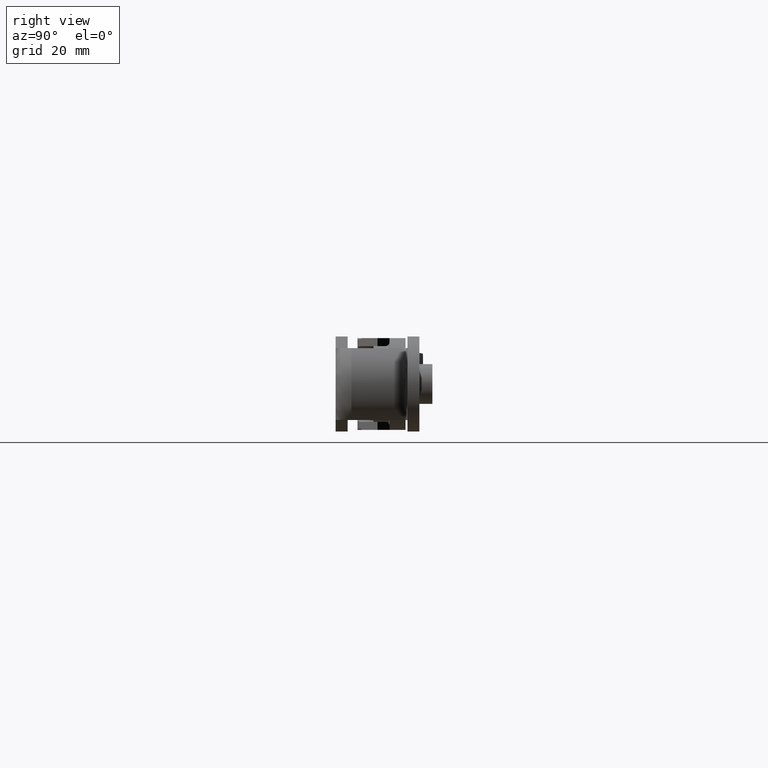
[diagram: clean part render]
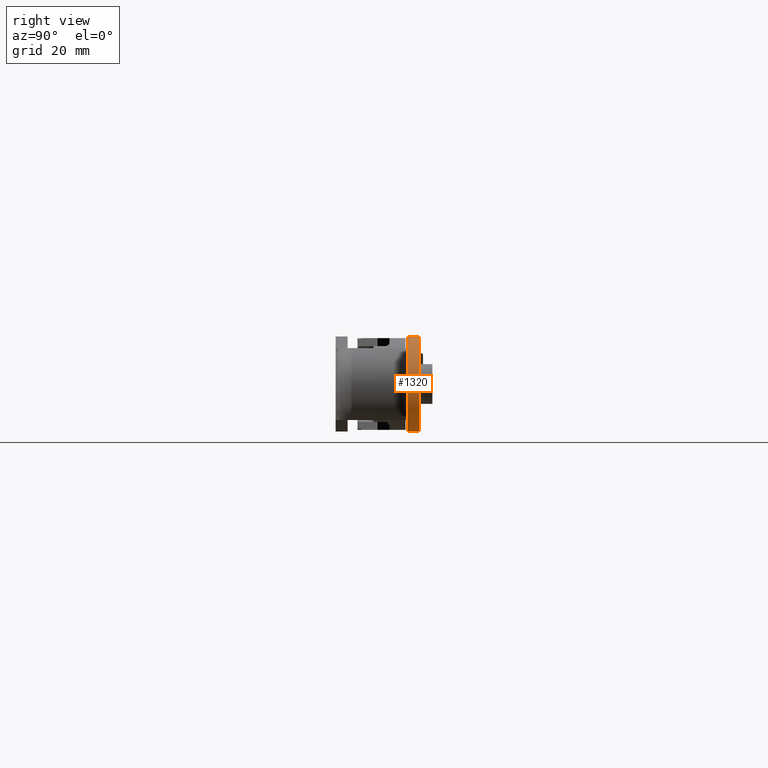
[diagram: same view with one face highlighted and labeled with its STEP entity id]
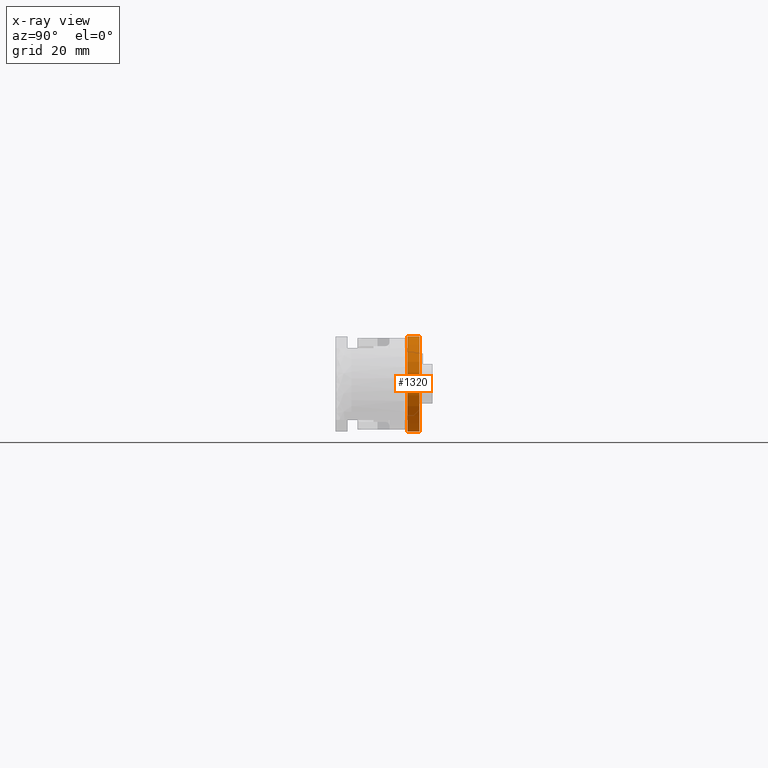
[diagram: x-ray of the same camera — body ghosted, the highlighted face saturated]
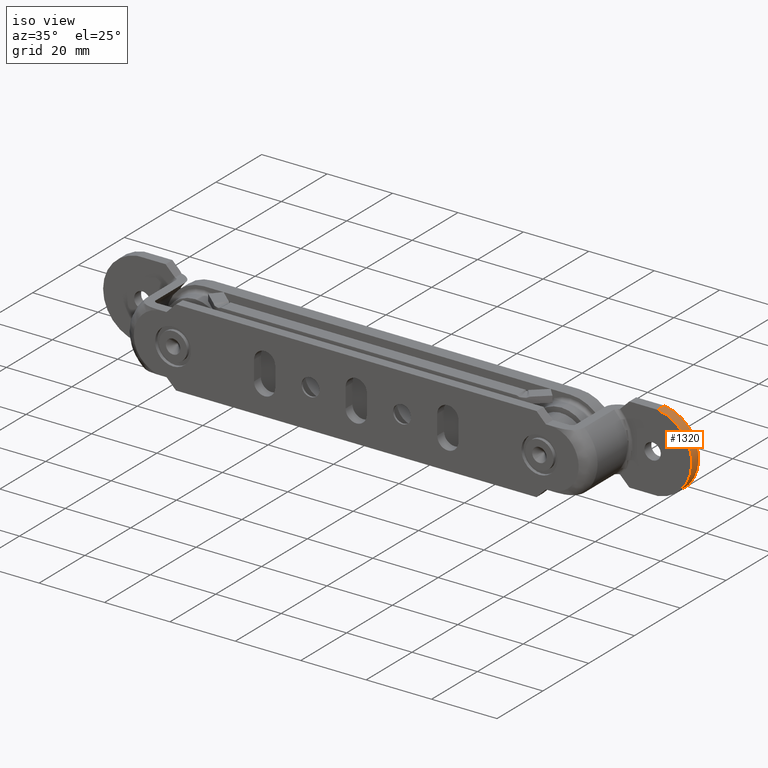
[diagram: same view with one face highlighted and labeled with its STEP entity id]
A machine part, right view. The second image highlights one B-rep face of the part: STEP entity #1320.
The next image is the same camera in x-ray: the body ghosted, the highlighted face saturated — about 0% of this face is hidden behind the body in this view.
A second angle (iso view) of the same face is appended — the face is thin or edge-on in the first view.
In plain terms, the highlighted cylindrical surface (partial cylindrical patch) has radius 12 mm, axis along (0, 1, 0).
Its self-contained STEP definition (entity closure, byte-faithful):
#160 = DIRECTION ( 'NONE',  ( 0.000000000000000000, 1.000000000000000000, 0.000000000000000000 ) ) ;
#170 = AXIS2_PLACEMENT_3D ( 'NONE', #1418, #5026, #5574 ) ;
#250 = CYLINDRICAL_SURFACE ( 'NONE', #4397, 12.00000000000000000 ) ;
#892 = DIRECTION ( 'NONE',  ( 0.000000000000000000, 1.000000000000000000, -0.000000000000000000 ) ) ;
#1320 = ADVANCED_FACE ( 'NONE', ( #8437 ), #250, .T. ) ;
#1418 = CARTESIAN_POINT ( 'NONE',  ( 78.00000000000000000, 21.00000000000000000, -1.842452832560978627E-15 ) ) ;
#1724 = EDGE_CURVE ( 'NONE', #2841, #4999, #6374, .T. ) ;
#1892 = LINE ( 'NONE', #1937, #7156 ) ;
#1937 = CARTESIAN_POINT ( 'NONE',  ( 79.54596248337401221, 18.00000000000000355, 11.90000000000000036 ) ) ;
#1944 = DIRECTION ( 'NONE',  ( 0.000000000000000000, 1.000000000000000000, 0.000000000000000000 ) ) ;
#2075 = CARTESIAN_POINT ( 'NONE',  ( 79.54596248337401221, 21.00000000000000000, 11.90000000000000036 ) ) ;
#2103 = AXIS2_PLACEMENT_3D ( 'NONE', #8582, #892, #2375 ) ;
#2375 = DIRECTION ( 'NONE',  ( 0.000000000000000000, 0.000000000000000000, -1.000000000000000000 ) ) ;
#2438 = CARTESIAN_POINT ( 'NONE',  ( 79.54596248337401221, 18.00000000000000355, 11.90000000000000036 ) ) ;
#2841 = VERTEX_POINT ( 'NONE', #2075 ) ;
#3089 = ORIENTED_EDGE ( 'NONE', *, *, #6289, .T. ) ;
#3211 = CARTESIAN_POINT ( 'NONE',  ( 79.54596248337404063, 18.00000000000000355, -11.90000000000000036 ) ) ;
#3677 = CIRCLE ( 'NONE', #2103, 12.00000000000000000 ) ;
#4223 = DIRECTION ( 'NONE',  ( 0.000000000000000000, 0.000000000000000000, 1.000000000000000000 ) ) ;
#4397 = AXIS2_PLACEMENT_3D ( 'NONE', #5762, #160, #4223 ) ;
#4644 = DIRECTION ( 'NONE',  ( -0.000000000000000000, -1.000000000000000000, -0.000000000000000000 ) ) ;
#4999 = VERTEX_POINT ( 'NONE', #7987 ) ;
#5026 = DIRECTION ( 'NONE',  ( 0.000000000000000000, 1.000000000000000000, -0.000000000000000000 ) ) ;
#5380 = LINE ( 'NONE', #8147, #6896 ) ;
#5574 = DIRECTION ( 'NONE',  ( 0.000000000000000000, 0.000000000000000000, -1.000000000000000000 ) ) ;
#5762 = CARTESIAN_POINT ( 'NONE',  ( 78.00000000000000000, 18.00000000000000355, -1.842452832560978627E-15 ) ) ;
#6090 = VERTEX_POINT ( 'NONE', #2438 ) ;
#6289 = EDGE_CURVE ( 'NONE', #8915, #4999, #5380, .T. ) ;
#6374 = CIRCLE ( 'NONE', #170, 12.00000000000000000 ) ;
#6628 = ORIENTED_EDGE ( 'NONE', *, *, #7132, .T. ) ;
#6896 = VECTOR ( 'NONE', #1944, 1000.000000000000000 ) ;
#7132 = EDGE_CURVE ( 'NONE', #2841, #6090, #1892, .T. ) ;
#7156 = VECTOR ( 'NONE', #4644, 1000.000000000000000 ) ;
#7473 = EDGE_CURVE ( 'NONE', #6090, #8915, #3677, .T. ) ;
#7483 = EDGE_LOOP ( 'NONE', ( #8724, #6628, #8294, #3089 ) ) ;
#7987 = CARTESIAN_POINT ( 'NONE',  ( 79.54596248337404063, 21.00000000000000000, -11.90000000000000036 ) ) ;
#8147 = CARTESIAN_POINT ( 'NONE',  ( 79.54596248337404063, 18.00000000000000355, -11.90000000000000036 ) ) ;
#8294 = ORIENTED_EDGE ( 'NONE', *, *, #7473, .T. ) ;
#8437 = FACE_OUTER_BOUND ( 'NONE', #7483, .T. ) ;
#8582 = CARTESIAN_POINT ( 'NONE',  ( 78.00000000000000000, 18.00000000000000355, -1.842452832560978627E-15 ) ) ;
#8724 = ORIENTED_EDGE ( 'NONE', *, *, #1724, .F. ) ;
#8915 = VERTEX_POINT ( 'NONE', #3211 ) ;